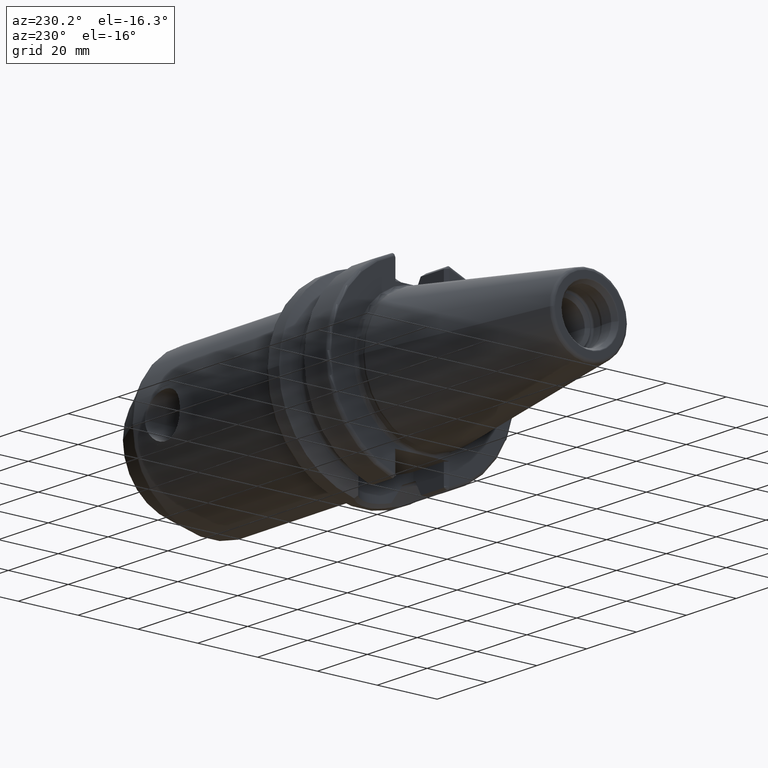
[diagram: clean part render]
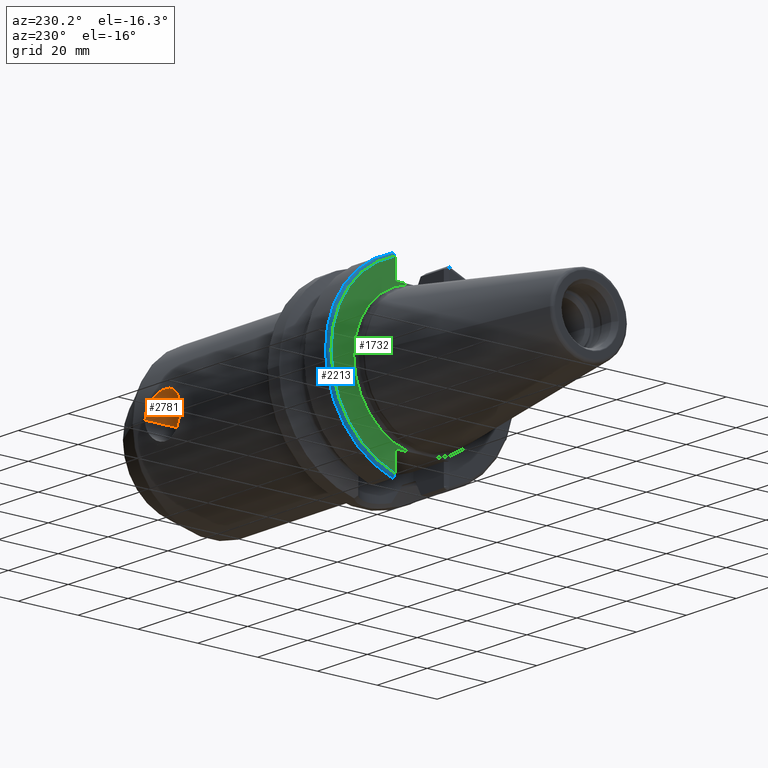
[diagram: same view with three faces highlighted in distinct colors, each labeled with its STEP entity id]
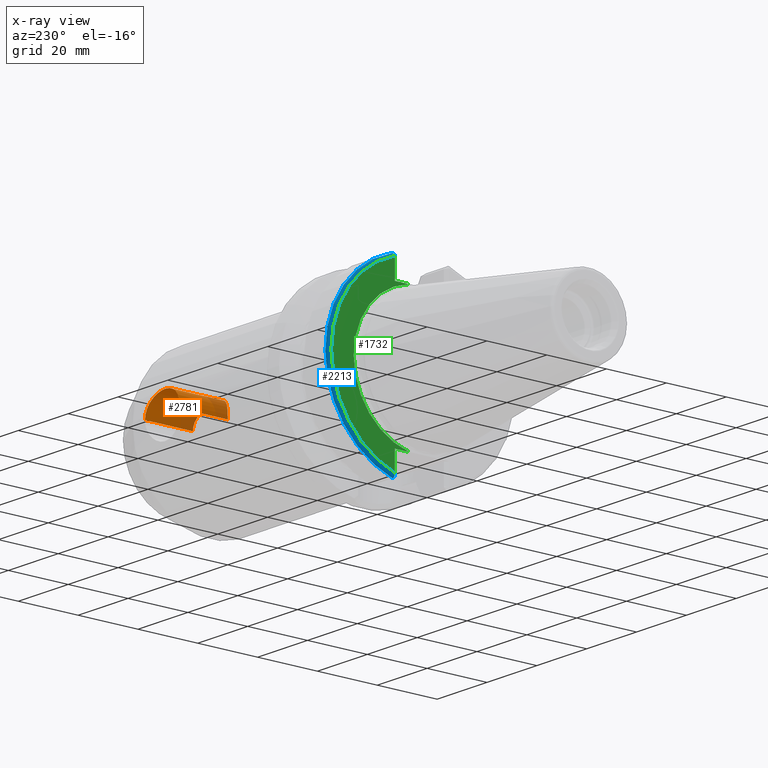
[diagram: x-ray of the same camera — body ghosted, the three highlighted faces saturated]
A machine part, auxiliary view with three faces highlighted in distinct colors.
The next image is the same camera in x-ray (body ghosted, the three faces saturated) — at least one of them is partly hidden behind the body in this view.
Their STEP definitions:

[orange] entity #2781 — the highlighted cylindrical surface (edge-blend (fillet) strip) has radius 7 mm, axis along (0, 1, 0).
#866=CARTESIAN_POINT('',(8.2E1,2.6E1,0.E0));
#867=CARTESIAN_POINT('',(8.2E1,2.6E1,3.688184910295E-1));
#868=CARTESIAN_POINT('',(8.194243312708E1,2.598441349028E1,1.095658644746E0));
#869=CARTESIAN_POINT('',(8.168752404669E1,2.591696491142E1,2.162423924233E0));
#870=CARTESIAN_POINT('',(8.127175435360E1,2.581201205216E1,3.171922110733E0));
#871=CARTESIAN_POINT('',(8.070400077141E1,2.567891193958E1,4.106650862025E0));
#872=CARTESIAN_POINT('',(7.999356328931E1,2.552926610525E1,4.946607918072E0));
#873=CARTESIAN_POINT('',(7.915559789058E1,2.537731998827E1,5.669415425596E0));
#874=CARTESIAN_POINT('',(7.820646756057E1,2.523802027545E1,6.255626270622E0));
#875=CARTESIAN_POINT('',(7.717998820511E1,2.512739607992E1,6.682383378512E0));
#876=CARTESIAN_POINT('',(7.611130127111E1,2.505684555765E1,6.939992865281E0));
#877=CARTESIAN_POINT('',(7.502232653010E1,2.503202137535E1,7.028242940565E0));
#878=CARTESIAN_POINT('',(7.393190166516E1,2.505493568294E1,6.946826340391E0));
#879=CARTESIAN_POINT('',(7.286143893374E1,2.512381424966E1,6.695720455503E0));
#880=CARTESIAN_POINT('',(7.183355131475E1,2.523294026948E1,6.275876666031E0));
#881=CARTESIAN_POINT('',(7.088068928904E1,2.537132173664E1,5.696037188109E0));
#882=CARTESIAN_POINT('',(7.003335284391E1,2.552391139940E1,4.974240106150E0));
#883=CARTESIAN_POINT('',(6.931337816822E1,2.567498809408E1,4.131428161185E0));
#884=CARTESIAN_POINT('',(6.873796897545E1,2.580961268730E1,3.191910862843E0));
#885=CARTESIAN_POINT('',(6.831691067862E1,2.591580385622E1,2.177238436852E0));
#886=CARTESIAN_POINT('',(6.805845369068E1,2.598417196797E1,1.103793250476E0));
#887=CARTESIAN_POINT('',(6.8E1,2.6E1,3.716728199093E-1));
#888=CARTESIAN_POINT('',(6.8E1,2.6E1,0.E0));
#946=DIRECTION('',(0.E0,1.E0,0.E0));
#947=VECTOR('',#946,1.6E1);
#948=CARTESIAN_POINT('',(6.8E1,1.E1,0.E0));
#949=LINE('',#948,#947);
#950=DIRECTION('',(0.E0,1.E0,0.E0));
#951=VECTOR('',#950,1.6E1);
#952=CARTESIAN_POINT('',(8.2E1,1.E1,0.E0));
#953=LINE('',#952,#951);
#954=CARTESIAN_POINT('',(6.8E1,1.E1,0.E0));
#955=CARTESIAN_POINT('',(6.8E1,1.E1,3.580564804905E-1));
#956=CARTESIAN_POINT('',(6.805472289952E1,9.961583128056E0,1.062499251988E0));
#957=CARTESIAN_POINT('',(6.828829631625E1,9.799564519018E0,2.074664685560E0));
#958=CARTESIAN_POINT('',(6.866105004312E1,9.547062268473E0,3.028332901632E0));
#959=CARTESIAN_POINT('',(6.917911135341E1,9.209478828213E0,3.935737862122E0));
#960=CARTESIAN_POINT('',(6.984675080034E1,8.799739944324E0,4.779659401973E0));
#961=CARTESIAN_POINT('',(7.066637179118E1,8.342295005057E0,5.535134906120E0));
#962=CARTESIAN_POINT('',(7.160345016796E1,7.891020115592E0,6.155508058540E0));
#963=CARTESIAN_POINT('',(7.262483803473E1,7.505506997793E0,6.613927500814E0));
#964=CARTESIAN_POINT('',(7.360953228320E1,7.254831884060E0,6.883878053222E0));
#965=CARTESIAN_POINT('',(7.456109221956E1,7.134716324292E0,7.006891741484E0));
#966=CARTESIAN_POINT('',(7.548173156215E1,7.137629993500E0,7.003959631356E0));
#967=CARTESIAN_POINT('',(7.642828480241E1,7.262462414981E0,6.875899486747E0));
#968=CARTESIAN_POINT('',(7.740824936473E1,7.516223577347E0,6.601885666689E0));
#969=CARTESIAN_POINT('',(7.842723217966E1,7.904457861236E0,6.138416621718E0));
#970=CARTESIAN_POINT('',(7.935812596826E1,8.355291951595E0,5.515443524138E0));
#971=CARTESIAN_POINT('',(8.016910949192E1,8.809200555143E0,4.761896588416E0));
#972=CARTESIAN_POINT('',(8.082965591538E1,9.215102941774E0,3.922052761528E0));
#973=CARTESIAN_POINT('',(8.134246795712E1,9.549432484801E0,3.020237284071E0));
#974=CARTESIAN_POINT('',(8.171253357746E1,9.800141116465E0,2.071167692185E0));
#975=CARTESIAN_POINT('',(8.194506430360E1,9.961435306852E0,1.063104005376E0));
#976=CARTESIAN_POINT('',(8.2E1,1.E1,3.586045811923E-1));
#977=CARTESIAN_POINT('',(8.2E1,1.E1,0.E0));
#1535=VERTEX_POINT('',#866);
#1536=VERTEX_POINT('',#888);
#1537=VERTEX_POINT('',#954);
#1538=VERTEX_POINT('',#977);
#2769=CARTESIAN_POINT('',(7.5E1,-5.716325549853E0,0.E0));
#2770=DIRECTION('',(0.E0,1.E0,0.E0));
#2771=DIRECTION('',(1.E0,0.E0,0.E0));
#2772=AXIS2_PLACEMENT_3D('',#2769,#2770,#2771);
#2773=CYLINDRICAL_SURFACE('',#2772,7.E0);
#2774=ORIENTED_EDGE('',*,*,#2703,.T.);
#2775=ORIENTED_EDGE('',*,*,#2764,.F.);
#2777=ORIENTED_EDGE('',*,*,#2776,.T.);
#2778=ORIENTED_EDGE('',*,*,#2760,.T.);
#2779=EDGE_LOOP('',(#2774,#2775,#2777,#2778));
#2780=FACE_OUTER_BOUND('',#2779,.F.);
#2781=ADVANCED_FACE('',(#2780),#2773,.F.);
#889=B_SPLINE_CURVE_WITH_KNOTS('',3,(#866,#867,#868,#869,#870,#871,#872,#873,
#874,#875,#876,#877,#878,#879,#880,#881,#882,#883,#884,#885,#886,#887,#888),
.UNSPECIFIED.,.F.,.F.,(4,1,1,1,1,1,1,1,1,1,1,1,1,1,1,1,1,1,1,1,4),(0.E0,5.E-2,
1.E-1,1.5E-1,2.E-1,2.5E-1,3.E-1,3.5E-1,4.E-1,4.5E-1,5.E-1,5.5E-1,6.E-1,6.5E-1,
7.E-1,7.5E-1,8.E-1,8.5E-1,9.E-1,9.5E-1,1.E0),.UNSPECIFIED.);
#978=B_SPLINE_CURVE_WITH_KNOTS('',3,(#954,#955,#956,#957,#958,#959,#960,#961,
#962,#963,#964,#965,#966,#967,#968,#969,#970,#971,#972,#973,#974,#975,#976,
#977),.UNSPECIFIED.,.F.,.F.,(4,1,1,1,1,1,1,1,1,1,1,1,1,1,1,1,1,1,1,1,1,4),(0.E0,
4.761904761905E-2,9.523809523810E-2,1.428571428571E-1,1.904761904762E-1,
2.380952380952E-1,2.857142857143E-1,3.333333333333E-1,3.809523809524E-1,
4.285714285714E-1,4.761904761905E-1,5.238095238095E-1,5.714285714286E-1,
6.190476190476E-1,6.666666666667E-1,7.142857142857E-1,7.619047619048E-1,
8.095238095238E-1,8.571428571429E-1,9.047619047619E-1,9.523809523810E-1,1.E0),
.UNSPECIFIED.);
#2703=EDGE_CURVE('',#1535,#1536,#889,.T.);
#2760=EDGE_CURVE('',#1538,#1535,#953,.T.);
#2764=EDGE_CURVE('',#1537,#1536,#949,.T.);
#2776=EDGE_CURVE('',#1537,#1538,#978,.T.);

[blue] entity #2213 — the highlighted toroidal blend (fillet) surface has major radius 30.4875 mm and minor (blend) radius 1 mm.
#228=CARTESIAN_POINT('',(3.E0,0.E0,0.E0));
#229=DIRECTION('',(-1.E0,0.E0,0.E0));
#230=DIRECTION('',(0.E0,2.983189831898E-1,9.544662300305E-1));
#231=AXIS2_PLACEMENT_3D('',#228,#229,#230);
#576=CARTESIAN_POINT('',(2.999999997734E0,9.052776400559E0,-3.015808496187E1));
#577=CARTESIAN_POINT('',(2.931534903981E0,9.052812497807E0,-3.015807412629E1));
#578=CARTESIAN_POINT('',(2.790930333101E0,9.053893030365E0,-3.014309601841E1));
#579=CARTESIAN_POINT('',(2.577680867074E0,9.059670739939E0,-3.006831316068E1));
#580=CARTESIAN_POINT('',(2.379122961844E0,9.068290399113E0,-2.993980731602E1));
#581=CARTESIAN_POINT('',(2.211396248706E0,9.078496481978E0,-2.976350519345E1));
#582=CARTESIAN_POINT('',(2.087184923784E0,9.087603638745E0,-2.955183251506E1));
#583=CARTESIAN_POINT('',(2.014374036950E0,9.093739351075E0,-2.932192619109E1));
#584=CARTESIAN_POINT('',(1.999985784732E0,9.095112793048E0,-2.917217137670E1));
#585=CARTESIAN_POINT('',(1.999985784732E0,9.094985783206E0,-2.909928820385E1));
#587=CARTESIAN_POINT('',(3.E0,9.095027762304E0,2.909928051092E1));
#588=DIRECTION('',(0.E0,9.544659454175E-1,-2.983198938025E-1));
#589=DIRECTION('',(-1.E0,-4.138911435803E-12,-1.324096388089E-11));
#590=AXIS2_PLACEMENT_3D('',#587,#588,#589);
#592=CARTESIAN_POINT('',(2.E0,0.E0,0.E0));
#593=DIRECTION('',(-1.E0,0.E0,0.E0));
#594=DIRECTION('',(0.E0,2.983190614061E-1,9.544662055839E-1));
#595=AXIS2_PLACEMENT_3D('',#592,#593,#594);
#1492=CARTESIAN_POINT('',(2.E0,9.095027762300E0,2.909928051090E1));
#1493=CARTESIAN_POINT('',(3.E0,9.393347656107E0,3.005374645633E1));
#1494=VERTEX_POINT('',#1492);
#1495=VERTEX_POINT('',#1493);
#1506=CARTESIAN_POINT('',(1.999985784732E0,9.094985783206E0,-2.909928820385E1));
#1508=VERTEX_POINT('',#1506);
#1510=VERTEX_POINT('',#576);
#2200=CARTESIAN_POINT('',(3.E0,0.E0,0.E0));
#2201=DIRECTION('',(1.E0,0.E0,0.E0));
#2202=DIRECTION('',(0.E0,-1.E0,0.E0));
#2203=AXIS2_PLACEMENT_3D('',#2200,#2201,#2202);
#2204=TOROIDAL_SURFACE('',#2203,3.04875E1,1.E0);
#2206=ORIENTED_EDGE('',*,*,#2205,.F.);
#2207=ORIENTED_EDGE('',*,*,#1882,.F.);
#2209=ORIENTED_EDGE('',*,*,#2208,.F.);
#2210=ORIENTED_EDGE('',*,*,#1719,.T.);
#2211=EDGE_LOOP('',(#2206,#2207,#2209,#2210));
#2212=FACE_OUTER_BOUND('',#2211,.F.);
#2213=ADVANCED_FACE('',(#2212),#2204,.T.);
#232=CIRCLE('',#231,3.14875E1);
#586=B_SPLINE_CURVE_WITH_KNOTS('',3,(#576,#577,#578,#579,#580,#581,#582,#583,
#584,#585),.UNSPECIFIED.,.F.,.F.,(4,1,1,1,1,1,1,4),(0.E0,1.428571428571E-1,
2.857142857143E-1,4.285714285714E-1,5.714285714286E-1,7.142857142857E-1,
8.571428571429E-1,1.E0),.UNSPECIFIED.);
#591=CIRCLE('',#590,1.E0);
#596=CIRCLE('',#595,3.04875E1);
#1719=EDGE_CURVE('',#1494,#1508,#596,.T.);
#1882=EDGE_CURVE('',#1495,#1510,#232,.T.);
#2205=EDGE_CURVE('',#1510,#1508,#586,.T.);
#2208=EDGE_CURVE('',#1494,#1495,#591,.T.);

[green] entity #1732 — the highlighted planar face has unit normal (1, 0, 0).
#96=CARTESIAN_POINT('',(2.E0,0.E0,0.E0));
#97=DIRECTION('',(-1.E0,0.E0,0.E0));
#98=DIRECTION('',(0.E0,1.E0,0.E0));
#99=AXIS2_PLACEMENT_3D('',#96,#97,#98);
#127=DIRECTION('',(2.137863157138E-6,2.138092596513E-6,9.999999999954E-1));
#128=VECTOR('',#127,6.649288203884E0);
#129=CARTESIAN_POINT('',(1.999985784732E0,9.094985783206E0,-2.909928820385E1));
#130=LINE('',#129,#128);
#131=DIRECTION('',(-4.462834027332E-6,-4.463945839096E-6,9.999999999801E-1));
#132=VECTOR('',#131,6.649296399125E0);
#133=CARTESIAN_POINT('',(2.E0,9.095E0,2.245E1));
#134=LINE('',#133,#132);
#592=CARTESIAN_POINT('',(2.E0,0.E0,0.E0));
#593=DIRECTION('',(-1.E0,0.E0,0.E0));
#594=DIRECTION('',(0.E0,2.983190614061E-1,9.544662055839E-1));
#595=AXIS2_PLACEMENT_3D('',#592,#593,#594);
#688=DIRECTION('',(0.E0,1.E0,0.E0));
#689=VECTOR('',#688,4.706022328605E0);
#690=CARTESIAN_POINT('',(2.E0,4.388977671395E0,2.245E1));
#691=LINE('',#690,#689);
#709=CARTESIAN_POINT('',(2.E0,0.E0,0.E0));
#710=DIRECTION('',(1.E0,0.E0,0.E0));
#711=DIRECTION('',(0.E0,1.E0,0.E0));
#712=AXIS2_PLACEMENT_3D('',#709,#710,#711);
#746=DIRECTION('',(0.E0,-1.E0,0.E0));
#747=VECTOR('',#746,4.706022328605E0);
#748=CARTESIAN_POINT('',(2.E0,9.095E0,-2.245E1));
#749=LINE('',#748,#747);
#1376=CARTESIAN_POINT('',(2.E0,2.2875E1,0.E0));
#1378=VERTEX_POINT('',#1376);
#1446=CARTESIAN_POINT('',(2.E0,4.388977671395E0,2.245E1));
#1447=VERTEX_POINT('',#1446);
#1454=CARTESIAN_POINT('',(2.E0,4.388977671395E0,-2.245E1));
#1455=VERTEX_POINT('',#1454);
#1492=CARTESIAN_POINT('',(2.E0,9.095027762300E0,2.909928051090E1));
#1494=VERTEX_POINT('',#1492);
#1496=CARTESIAN_POINT('',(2.E0,9.095E0,2.245E1));
#1497=VERTEX_POINT('',#1496);
#1506=CARTESIAN_POINT('',(1.999985784732E0,9.094985783206E0,-2.909928820385E1));
#1507=CARTESIAN_POINT('',(2.E0,9.095E0,-2.245E1));
#1508=VERTEX_POINT('',#1506);
#1509=VERTEX_POINT('',#1507);
#1712=CARTESIAN_POINT('',(2.E0,0.E0,0.E0));
#1713=DIRECTION('',(1.E0,0.E0,0.E0));
#1714=DIRECTION('',(0.E0,-1.E0,0.E0));
#1715=AXIS2_PLACEMENT_3D('',#1712,#1713,#1714);
#1716=PLANE('',#1715);
#1718=ORIENTED_EDGE('',*,*,#1717,.F.);
#1720=ORIENTED_EDGE('',*,*,#1719,.F.);
#1722=ORIENTED_EDGE('',*,*,#1721,.F.);
#1724=ORIENTED_EDGE('',*,*,#1723,.F.);
#1726=ORIENTED_EDGE('',*,*,#1725,.F.);
#1727=ORIENTED_EDGE('',*,*,#1698,.T.);
#1729=ORIENTED_EDGE('',*,*,#1728,.F.);
#1730=EDGE_LOOP('',(#1718,#1720,#1722,#1724,#1726,#1727,#1729));
#1731=FACE_OUTER_BOUND('',#1730,.F.);
#1732=ADVANCED_FACE('',(#1731),#1716,.F.);
#100=CIRCLE('',#99,2.2875E1);
#596=CIRCLE('',#595,3.04875E1);
#713=CIRCLE('',#712,2.2875E1);
#1698=EDGE_CURVE('',#1378,#1455,#100,.T.);
#1717=EDGE_CURVE('',#1508,#1509,#130,.T.);
#1719=EDGE_CURVE('',#1494,#1508,#596,.T.);
#1721=EDGE_CURVE('',#1497,#1494,#134,.T.);
#1723=EDGE_CURVE('',#1447,#1497,#691,.T.);
#1725=EDGE_CURVE('',#1378,#1447,#713,.T.);
#1728=EDGE_CURVE('',#1509,#1455,#749,.T.);